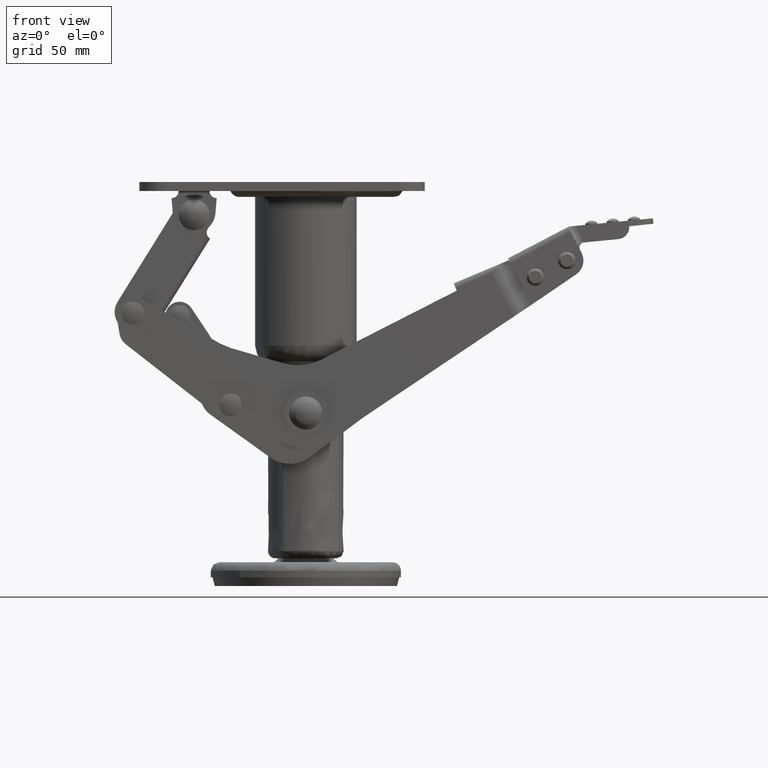
[diagram: clean part render]
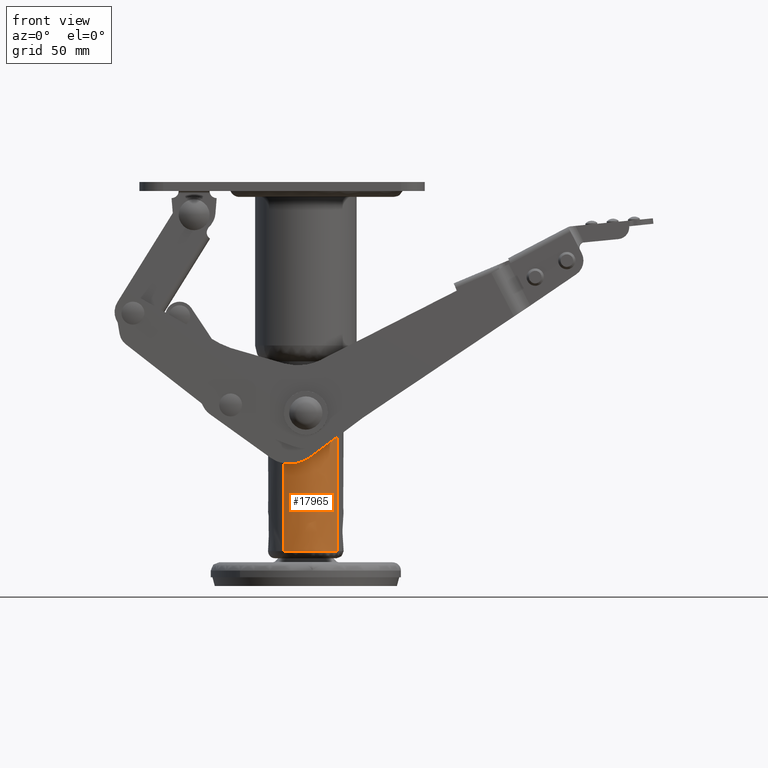
[diagram: same view with one face highlighted and labeled with its STEP entity id]
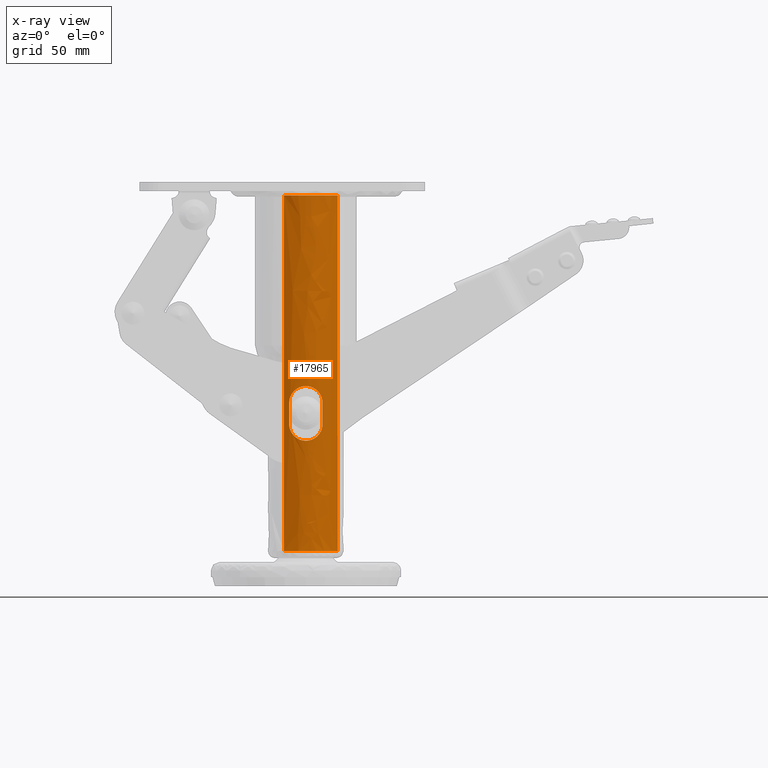
[diagram: x-ray of the same camera — body ghosted, the highlighted face saturated]
A machine part, front view. The second image highlights one B-rep face of the part: STEP entity #17965.
The next image is the same camera in x-ray: the body ghosted, the highlighted face saturated — about 0% of this face is hidden behind the body in this view.
In plain terms, the highlighted face is a freeform B-spline surface patch.
Its self-contained STEP definition (entity closure, byte-faithful):
#17441=CARTESIAN_POINT('',(-9.268997070458426,-12.918804221284271,-110.499995001324510));
#17442=VERTEX_POINT('',#17441);
#17455=CARTESIAN_POINT('',(-9.268997513021827,-12.918805170369041,39.149999999999991));
#17456=VERTEX_POINT('',#17455);
#17457=CARTESIAN_POINT('',(-9.268997513021827,-12.918805170369041,39.149999999999991));
#17458=CARTESIAN_POINT('',(-9.268997070458426,-12.918804221284271,-110.499995001324510));
#17459=QUASI_UNIFORM_CURVE('',1,(#17457,#17458),.UNSPECIFIED.,.F.,.U.);
#17460=EDGE_CURVE('',#17456,#17442,#17459,.T.);
#17507=CARTESIAN_POINT('',(13.427773001684780,-8.514968594584312,39.150000000000013));
#17508=VERTEX_POINT('',#17507);
#17518=CARTESIAN_POINT('',(13.427773817079849,-8.514969143654231,-110.499994999356900));
#17519=VERTEX_POINT('',#17518);
#17520=CARTESIAN_POINT('',(13.427773001684780,-8.514968594584312,39.150000000000013));
#17521=CARTESIAN_POINT('',(13.427773817079849,-8.514969143654231,-110.499994999356900));
#17522=QUASI_UNIFORM_CURVE('',1,(#17520,#17521),.UNSPECIFIED.,.F.,.U.);
#17523=EDGE_CURVE('',#17508,#17519,#17522,.T.);
#17737=CARTESIAN_POINT('',(13.427773746613029,-8.514969254777608,42.891249875084767));
#17738=CARTESIAN_POINT('',(4.912804491835454,-21.942743001390639,42.891249875084767));
#17739=CARTESIAN_POINT('',(-8.514969254777574,-13.427773746613060,42.891249875084782));
#17740=CARTESIAN_POINT('',(-8.899266370443854,-13.184078984819545,42.891249875084775));
#17741=CARTESIAN_POINT('',(-9.268996998442106,-12.918804272954578,42.891249875084782));
#17742=CARTESIAN_POINT('',(13.427773746613029,-8.514969254777608,-114.334776125352800));
#17743=CARTESIAN_POINT('',(4.912804491835454,-21.942743001390639,-114.334776125352780));
#17744=CARTESIAN_POINT('',(-8.514969254777574,-13.427773746613060,-114.334776125352800));
#17745=CARTESIAN_POINT('',(-8.899266370443854,-13.184078984819545,-114.334776125352800));
#17746=CARTESIAN_POINT('',(-9.268996998442106,-12.918804272954578,-114.334776125352760));
#17754=(BOUNDED_SURFACE()B_SPLINE_SURFACE(2,1,((#17737,#17742),(#17738,#17743),(#17739,#17744),(#17740,#17745),(#17741,#17746)),.UNSPECIFIED.,.F.,.F.,.U.)B_SPLINE_SURFACE_WITH_KNOTS((3,2,3),(2,2),(0.0,26.343972625803431,27.397731530835561),(0.0,157.226026000437600),.UNSPECIFIED.)GEOMETRIC_REPRESENTATION_ITEM()RATIONAL_B_SPLINE_SURFACE(((1.0,1.0),(0.707106781186548,0.707106781186548),(1.0,1.0),(0.988284271247462,0.988284271247462),(0.977505800795127,0.977505800795127)))REPRESENTATION_ITEM('')SURFACE());
#17755=CARTESIAN_POINT('',(0.099749535582107,-15.899681104669719,-110.499995000000000));
#17756=VERTEX_POINT('',#17755);
#17757=CARTESIAN_POINT('',(0.099749535582107,-15.899681104669719,-110.499995000000000));
#17758=CARTESIAN_POINT('',(-1.357940265561507,-15.909392993120640,-110.499995000155810));
#17759=CARTESIAN_POINT('',(-3.806476697898698,-15.585207723842951,-110.499995000452700));
#17760=CARTESIAN_POINT('',(-6.935800494474968,-14.399833208924260,-110.499995000916700));
#17761=CARTESIAN_POINT('',(-8.549957276670929,-13.434758655958030,-110.499995001191190));
#17762=CARTESIAN_POINT('',(-9.268997070458426,-12.918804221284271,-110.499995001324510));
#17763=B_SPLINE_CURVE_WITH_KNOTS('',3,(#17757,#17758,#17759,#17760,#17761,#17762),.UNSPECIFIED.,.F.,.U.,(4,1,1,4),(0.000000036826941,4.372992049470207,7.340328950450553,9.995344230422381),.UNSPECIFIED.);
#17764=EDGE_CURVE('',#17756,#17442,#17763,.T.);
#17765=ORIENTED_EDGE('',*,*,#17764,.F.);
#17766=CARTESIAN_POINT('',(13.427773817079849,-8.514969143654231,-110.499994999356900));
#17767=CARTESIAN_POINT('',(12.718914786878250,-9.633487307047860,-110.499994999313800));
#17768=CARTESIAN_POINT('',(11.125560369118070,-11.562834956750310,-110.499994999279000));
#17769=CARTESIAN_POINT('',(8.467404568854837,-13.569076887512050,-110.499994999350310));
#17770=CARTESIAN_POINT('',(6.160333410347943,-14.709284109820031,-110.499994999476600));
#17771=CARTESIAN_POINT('',(3.491034966075528,-15.612965324828791,-110.499994999666600));
#17772=CARTESIAN_POINT('',(1.506738304056766,-15.891352386055530,-110.499994999849510));
#17773=CARTESIAN_POINT('',(0.099749535582107,-15.899681104669719,-110.499995000000000));
#17774=B_SPLINE_CURVE_WITH_KNOTS('',3,(#17766,#17767,#17768,#17769,#17770,#17771,#17772,#17773),.UNSPECIFIED.,.F.,.U.,(4,1,1,1,1,4),(0.000000024565802,3.972591316338125,7.448615634886419,9.931473462891020,11.669485569973951,15.890363404715840),.UNSPECIFIED.);
#17775=EDGE_CURVE('',#17519,#17756,#17774,.T.);
#17776=ORIENTED_EDGE('',*,*,#17775,.F.);
#17777=ORIENTED_EDGE('',*,*,#17523,.F.);
#17778=CARTESIAN_POINT('',(-0.000004345493934,-15.899993999999490,39.149999999999999));
#17779=VERTEX_POINT('',#17778);
#17780=CARTESIAN_POINT('',(13.427773001684780,-8.514968594584312,39.150000000000013));
#17781=CARTESIAN_POINT('',(12.714450357764060,-9.640478465769560,39.150000000000063));
#17782=CARTESIAN_POINT('',(11.162948396279420,-11.516272170228589,39.149999999999807));
#17783=CARTESIAN_POINT('',(8.700968338774766,-13.395899547085010,39.150000000000233));
#17784=CARTESIAN_POINT('',(6.120071530122225,-14.763085490440510,39.149999999999963));
#17785=CARTESIAN_POINT('',(3.331220799659417,-15.669518345266161,39.149999999999913));
#17786=CARTESIAN_POINT('',(1.082653065176590,-15.900122103432849,39.150000000000198));
#17787=CARTESIAN_POINT('',(-0.000004345493934,-15.899993999999490,39.149999999999999));
#17788=B_SPLINE_CURVE_WITH_KNOTS('',3,(#17780,#17781,#17782,#17783,#17784,#17785,#17786,#17787),.UNSPECIFIED.,.F.,.U.,(4,1,1,1,1,4),(0.000000025439798,3.997530173848539,7.245529151343385,9.244283397267022,12.742128010656440,15.990120532205610),.UNSPECIFIED.);
#17789=EDGE_CURVE('',#17508,#17779,#17788,.T.);
#17790=ORIENTED_EDGE('',*,*,#17789,.T.);
#17791=CARTESIAN_POINT('',(-0.000004345493934,-15.899993999999490,39.149999999999999));
#17792=CARTESIAN_POINT('',(-1.133897315426251,-15.900196038428810,39.149999999999942));
#17793=CARTESIAN_POINT('',(-2.834567099248155,-15.717210374011120,39.150000000000013));
#17794=CARTESIAN_POINT('',(-6.020497187771015,-14.844503299324050,39.149999999999991));
#17795=CARTESIAN_POINT('',(-7.971222499793124,-13.850970889696800,39.149999999999913));
#17796=CARTESIAN_POINT('',(-9.268997513021827,-12.918805170369041,39.149999999999991));
#17797=B_SPLINE_CURVE_WITH_KNOTS('',3,(#17791,#17792,#17793,#17794,#17795,#17796),.UNSPECIFIED.,.F.,.U.,(4,1,1,4),(0.000000035037219,3.401618917383112,5.102379941771917,9.895588630569334),.UNSPECIFIED.);
#17798=EDGE_CURVE('',#17779,#17456,#17797,.T.);
#17799=ORIENTED_EDGE('',*,*,#17798,.T.);
#17800=ORIENTED_EDGE('',*,*,#17460,.T.);
#17801=EDGE_LOOP('',(#17765,#17776,#17777,#17790,#17799,#17800));
#17802=FACE_OUTER_BOUND('',#17801,.T.);
#17803=CARTESIAN_POINT('',(-7.0,-14.276197294799401,-48.099991063486712));
#17804=VERTEX_POINT('',#17803);
#17805=CARTESIAN_POINT('',(-7.0,-14.276197294799401,-57.100006936513303));
#17806=VERTEX_POINT('',#17805);
#17807=CARTESIAN_POINT('',(-7.0,-14.276197294799401,-48.099991063486712));
#17808=CARTESIAN_POINT('',(-7.0,-14.276197294799401,-57.100006936513303));
#17809=QUASI_UNIFORM_CURVE('',1,(#17807,#17808),.UNSPECIFIED.,.F.,.U.);
#17810=EDGE_CURVE('',#17804,#17806,#17809,.T.);
#17811=ORIENTED_EDGE('',*,*,#17810,.F.);
#17812=CARTESIAN_POINT('',(7.0,-14.276197294799440,-48.099991063486712));
#17813=VERTEX_POINT('',#17812);
#17814=CARTESIAN_POINT('',(-7.0,-14.276197294799401,-48.099991063486712));
#17815=CARTESIAN_POINT('',(-7.000000000000002,-14.276197294799401,-47.631111076883030));
#17816=CARTESIAN_POINT('',(-6.953380311785102,-14.299315215327001,-47.171457105410447));
#17817=CARTESIAN_POINT('',(-6.817368712197084,-14.364394142771420,-46.494873588078249));
#17818=CARTESIAN_POINT('',(-6.760929760650941,-14.391150568419841,-46.271509156732627));
#17819=CARTESIAN_POINT('',(-6.659322081470181,-14.438304360038931,-45.939711279942607));
#17820=CARTESIAN_POINT('',(-6.622558847781341,-14.455219641814759,-45.829529236612203));
#17821=CARTESIAN_POINT('',(-6.544226512781404,-14.490850904444610,-45.612747217574103));
#17822=CARTESIAN_POINT('',(-6.502570571077540,-14.509607623337720,-45.505834816412062));
#17823=CARTESIAN_POINT('',(-6.282112246563633,-14.607605086461451,-44.978421525761007));
#17824=CARTESIAN_POINT('',(-6.067179974633512,-14.699430802905990,-44.579146534365492));
#17825=CARTESIAN_POINT('',(-5.750412404748015,-14.823872620666030,-44.106784849740961));
#17826=CARTESIAN_POINT('',(-5.684479367770735,-14.849302831354439,-44.013465199314062));
#17827=CARTESIAN_POINT('',(-5.548378385708206,-14.900691176884649,-43.830506714040148));
#17828=CARTESIAN_POINT('',(-5.478381539175176,-14.926586779638241,-43.741074450524700));
#17829=CARTESIAN_POINT('',(-5.262635117638681,-15.004595053978180,-43.478741781233907));
#17830=CARTESIAN_POINT('',(-5.111145280679073,-15.057026394187179,-43.311788684491553));
#17831=CARTESIAN_POINT('',(-4.792895245551375,-15.161332562826670,-42.993246183664112));
#17832=CARTESIAN_POINT('',(-4.626135249301007,-15.213210344179229,-42.841657536003389));
#17833=CARTESIAN_POINT('',(-4.364198745401171,-15.289599415646400,-42.625818156242289));
#17834=CARTESIAN_POINT('',(-4.274916549831088,-15.314824667998019,-42.555799694626373));
#17835=CARTESIAN_POINT('',(-4.092304264752069,-15.364628597015690,-42.419672828805027));
#17836=CARTESIAN_POINT('',(-3.998720140148055,-15.389269127893719,-42.353403057070132));
#17837=CARTESIAN_POINT('',(-3.524862347037097,-15.509290126674159,-42.035015463379011));
#17838=CARTESIAN_POINT('',(-3.125451136968707,-15.595614920590091,-41.819932596309172));
#17839=CARTESIAN_POINT('',(-2.495136122088637,-15.704444116953191,-41.555818807010311));
#17840=CARTESIAN_POINT('',(-2.279795727558605,-15.737279179888461,-41.477609696787908));
#17841=CARTESIAN_POINT('',(-2.003708720063141,-15.773333874747291,-41.392645158772957));
#17842=CARTESIAN_POINT('',(-1.948144883292921,-15.780295064007859,-41.376293816330943));
#17843=CARTESIAN_POINT('',(-1.836311536608258,-15.793699399886361,-41.344894239737272));
#17844=CARTESIAN_POINT('',(-1.779984618393590,-15.800147940340411,-41.329833545286540));
#17845=CARTESIAN_POINT('',(-1.610989971041103,-15.818576561326070,-41.286898992697928));
#17846=CARTESIAN_POINT('',(-1.497999824211832,-15.829679204524011,-41.261178354047637));
#17847=CARTESIAN_POINT('',(-0.931434133501780,-15.879208025529060,-41.146845413859261));
#17848=CARTESIAN_POINT('',(-0.473055274037768,-15.899715055116790,-41.100624667090521));
#17849=CARTESIAN_POINT('',(0.106425703215020,-15.900060210660181,-41.099840670645037));
#17850=CARTESIAN_POINT('',(0.222649881983343,-15.898862487010550,-41.102559751038207));
#17851=CARTESIAN_POINT('',(0.455767573444874,-15.893888047605429,-41.113869545693142));
#17852=CARTESIAN_POINT('',(0.572885109692231,-15.890094279642691,-41.122499155010459));
#17853=CARTESIAN_POINT('',(0.920924568045952,-15.875000617298079,-41.156918208690797));
#17854=CARTESIAN_POINT('',(1.149847974311826,-15.859984074346769,-41.191231999844383));
#17855=CARTESIAN_POINT('',(1.601736887905055,-15.820735891370120,-41.281813806667017));
#17856=CARTESIAN_POINT('',(1.824701811887978,-15.796502725234550,-41.338083705585063));
#17857=CARTESIAN_POINT('',(2.154741913890238,-15.753704419825070,-41.438886107151561));
#17858=CARTESIAN_POINT('',(2.264019504988335,-15.738363129680970,-41.475224989881802));
#17859=CARTESIAN_POINT('',(2.481098625885381,-15.705604347789309,-41.553430175693478));
#17860=CARTESIAN_POINT('',(2.589190786769793,-15.688135256312639,-41.595421952442010));
#17861=CARTESIAN_POINT('',(3.121910072223360,-15.596489589353871,-41.817720016217869));
#17862=CARTESIAN_POINT('',(3.522322734318724,-15.509804544307331,-42.033774875217389));
#17863=CARTESIAN_POINT('',(4.087378793683221,-15.366876394010800,-42.412744922441952));
#17864=CARTESIAN_POINT('',(4.269755070539076,-15.317073758790400,-42.548294219420832));
#17865=CARTESIAN_POINT('',(4.622509054820561,-15.214334258610251,-42.838379499630342));
#17866=CARTESIAN_POINT('',(4.790515182607368,-15.162089985816010,-42.990988854459673));
#17867=CARTESIAN_POINT('',(5.269257808442943,-15.005250026545440,-43.469798919017677));
#17868=CARTESIAN_POINT('',(5.555629397220700,-14.900304144985890,-43.817264644683988));
#17869=CARTESIAN_POINT('',(5.872739431812513,-14.775837803381650,-44.288973576038913));
#17870=CARTESIAN_POINT('',(5.934171761970657,-14.751254007925411,-44.385328405628883));
#17871=CARTESIAN_POINT('',(6.052499974160230,-14.703099447725160,-44.581417883198441));
#17872=CARTESIAN_POINT('',(6.109064026390424,-14.679665494119160,-44.680588708078098));
#17873=CARTESIAN_POINT('',(6.271099874191725,-14.611531335177659,-44.981464271112038));
#17874=CARTESIAN_POINT('',(6.368935865794838,-14.568997580661909,-45.186523876131808));
#17875=CARTESIAN_POINT('',(6.632254486914266,-14.451986406458170,-45.815315839650353));
#17876=CARTESIAN_POINT('',(6.767908317999532,-14.388042918989280,-46.252510889923187));
#17877=CARTESIAN_POINT('',(6.906916608090603,-14.321555445509141,-46.938550377518808));
#17878=CARTESIAN_POINT('',(6.941721614121152,-14.304648887594279,-47.169013870253742));
#17879=CARTESIAN_POINT('',(6.988244048023629,-14.281978990692121,-47.632377304558418));
#17880=CARTESIAN_POINT('',(7.0,-14.276197294799420,-47.865463876086679));
#17881=CARTESIAN_POINT('',(7.0,-14.276197294799420,-48.099991063486712));
#17882=B_SPLINE_CURVE_WITH_KNOTS('',3,(#17814,#17815,#17816,#17817,#17818,#17819,#17820,#17821,#17822,#17823,#17824,#17825,#17826,#17827,#17828,#17829,#17830,#17831,#17832,#17833,#17834,#17835,#17836,#17837,#17838,#17839,#17840,#17841,#17842,#17843,#17844,#17845,#17846,#17847,#17848,#17849,#17850,#17851,#17852,#17853,#17854,#17855,#17856,#17857,#17858,#17859,#17860,#17861,#17862,#17863,#17864,#17865,#17866,#17867,#17868,#17869,#17870,#17871,#17872,#17873,#17874,#17875,#17876,#17877,#17878,#17879,#17880,#17881),.UNSPECIFIED.,.F.,.U.,(4,2,2,2,2,2,2,2,2,2,2,2,2,2,2,2,2,2,2,2,2,2,2,2,2,2,2,2,2,2,2,2,2,4),(0.0,0.062500000000004,0.093750000000005,0.109375000000006,0.125000000000007,0.187500000000009,0.203125000000009,0.218750000000009,0.250000000000010,0.281250000000011,0.296875000000011,0.312500000000011,0.375000000000011,0.406250000000011,0.414062500000011,0.421875000000011,0.437500000000011,0.500000000000010,0.515625000000010,0.531250000000009,0.562500000000009,0.593750000000008,0.609375000000008,0.625000000000008,0.687500000000007,0.718750000000006,0.750000000000005,0.812500000000004,0.828125000000003,0.843750000000003,0.875000000000002,0.937500000000001,0.968750000000001,1.0),.UNSPECIFIED.);
#17883=EDGE_CURVE('',#17804,#17813,#17882,.T.);
#17884=ORIENTED_EDGE('',*,*,#17883,.T.);
#17885=CARTESIAN_POINT('',(7.0,-14.276197294799401,-57.100006936513303));
#17886=VERTEX_POINT('',#17885);
#17887=CARTESIAN_POINT('',(7.0,-14.276197294799401,-57.100006936513303));
#17888=CARTESIAN_POINT('',(7.0,-14.276197294799440,-48.099991063486712));
#17889=QUASI_UNIFORM_CURVE('',1,(#17887,#17888),.UNSPECIFIED.,.F.,.U.);
#17890=EDGE_CURVE('',#17886,#17813,#17889,.T.);
#17891=ORIENTED_EDGE('',*,*,#17890,.F.);
#17892=CARTESIAN_POINT('',(7.0,-14.276197294799401,-57.100006936513303));
#17893=CARTESIAN_POINT('',(7.000000000000003,-14.276197294799401,-57.568886923116992));
#17894=CARTESIAN_POINT('',(6.953380311785103,-14.299315215327001,-58.028540894589547));
#17895=CARTESIAN_POINT('',(6.817368712197083,-14.364394142771420,-58.705124411921751));
#17896=CARTESIAN_POINT('',(6.760929760650942,-14.391150568419841,-58.928488843267367));
#17897=CARTESIAN_POINT('',(6.659322081470181,-14.438304360038931,-59.260286720057380));
#17898=CARTESIAN_POINT('',(6.622558847781338,-14.455219641814759,-59.370468763387777));
#17899=CARTESIAN_POINT('',(6.544226512781398,-14.490850904444610,-59.587250782425912));
#17900=CARTESIAN_POINT('',(6.502570571077539,-14.509607623337720,-59.694163183587953));
#17901=CARTESIAN_POINT('',(6.282112246563635,-14.607605086461451,-60.221576474238987));
#17902=CARTESIAN_POINT('',(6.067179974633511,-14.699430802905990,-60.620851465634537));
#17903=CARTESIAN_POINT('',(5.750412404748017,-14.823872620666039,-61.093213150259018));
#17904=CARTESIAN_POINT('',(5.684479367770720,-14.849302831354450,-61.186532800685981));
#17905=CARTESIAN_POINT('',(5.548378385708190,-14.900691176884660,-61.369491285959867));
#17906=CARTESIAN_POINT('',(5.478381539175166,-14.926586779638249,-61.458923549475323));
#17907=CARTESIAN_POINT('',(5.262635117638673,-15.004595053978180,-61.721256218766108));
#17908=CARTESIAN_POINT('',(5.111145280679067,-15.057026394187190,-61.888209315508497));
#17909=CARTESIAN_POINT('',(4.792895245551372,-15.161332562826670,-62.206751816335881));
#17910=CARTESIAN_POINT('',(4.626135249301001,-15.213210344179240,-62.358340463996633));
#17911=CARTESIAN_POINT('',(4.364198745401166,-15.289599415646400,-62.574179843757712));
#17912=CARTESIAN_POINT('',(4.274916549831084,-15.314824667998019,-62.644198305373607));
#17913=CARTESIAN_POINT('',(4.092304264752067,-15.364628597015690,-62.780325171194960));
#17914=CARTESIAN_POINT('',(3.998720140148036,-15.389269127893719,-62.846594942929890));
#17915=CARTESIAN_POINT('',(3.524862347037083,-15.509290126674159,-63.164982536620997));
#17916=CARTESIAN_POINT('',(3.125451136968702,-15.595614920590100,-63.380065403690800));
#17917=CARTESIAN_POINT('',(2.495136122088637,-15.704444116953180,-63.644179192989682));
#17918=CARTESIAN_POINT('',(2.279795727558611,-15.737279179888461,-63.722388303212092));
#17919=CARTESIAN_POINT('',(2.003708720063151,-15.773333874747291,-63.807352841227029));
#17920=CARTESIAN_POINT('',(1.948144883292929,-15.780295064007870,-63.823704183669072));
#17921=CARTESIAN_POINT('',(1.836311536608266,-15.793699399886361,-63.855103760262743));
#17922=CARTESIAN_POINT('',(1.779984618393568,-15.800147940340430,-63.870164454713468));
#17923=CARTESIAN_POINT('',(1.610989971041083,-15.818576561326079,-63.913099007302087));
#17924=CARTESIAN_POINT('',(1.497999824211812,-15.829679204524011,-63.938819645952371));
#17925=CARTESIAN_POINT('',(0.931434133501770,-15.879208025529049,-64.053152586140783));
#17926=CARTESIAN_POINT('',(0.473055274037764,-15.899715055116779,-64.099373332909494));
#17927=CARTESIAN_POINT('',(-0.106425703215019,-15.900060210660181,-64.100157329354971));
#17928=CARTESIAN_POINT('',(-0.222649881983342,-15.898862487010550,-64.097438248961794));
#17929=CARTESIAN_POINT('',(-0.455767573444871,-15.893888047605429,-64.086128454306845));
#17930=CARTESIAN_POINT('',(-0.572885109692245,-15.890094279642691,-64.077498844989577));
#17931=CARTESIAN_POINT('',(-0.920924568045963,-15.875000617298079,-64.043079791309239));
#17932=CARTESIAN_POINT('',(-1.149847974311836,-15.859984074346769,-64.008766000155617));
#17933=CARTESIAN_POINT('',(-1.601736887905060,-15.820735891370120,-63.918184193332984));
#17934=CARTESIAN_POINT('',(-1.824701811887985,-15.796502725234550,-63.861914294414959));
#17935=CARTESIAN_POINT('',(-2.154741913890240,-15.753704419825070,-63.761111892848433));
#17936=CARTESIAN_POINT('',(-2.264019504988338,-15.738363129680961,-63.724773010118227));
#17937=CARTESIAN_POINT('',(-2.481098625885382,-15.705604347789309,-63.646567824306558));
#17938=CARTESIAN_POINT('',(-2.589190786769805,-15.688135256312639,-63.604576047557998));
#17939=CARTESIAN_POINT('',(-3.121910072223364,-15.596489589353860,-63.382277983782110));
#17940=CARTESIAN_POINT('',(-3.522322734318730,-15.509804544307331,-63.166223124782633));
#17941=CARTESIAN_POINT('',(-4.087378793683222,-15.366876394010800,-62.787253077558063));
#17942=CARTESIAN_POINT('',(-4.269755070539079,-15.317073758790400,-62.651703780579190));
#17943=CARTESIAN_POINT('',(-4.622509054820559,-15.214334258610251,-62.361618500369680));
#17944=CARTESIAN_POINT('',(-4.790515182607373,-15.162089985815999,-62.209009145540342));
#17945=CARTESIAN_POINT('',(-5.269257808442949,-15.005250026545440,-61.730199080982310));
#17946=CARTESIAN_POINT('',(-5.555629397220699,-14.900304144985890,-61.382733355316027));
#17947=CARTESIAN_POINT('',(-5.872739431812513,-14.775837803381650,-60.911024423961081));
#17948=CARTESIAN_POINT('',(-5.934171761970662,-14.751254007925420,-60.814669594371132));
#17949=CARTESIAN_POINT('',(-6.052499974160234,-14.703099447725160,-60.618580116801553));
#17950=CARTESIAN_POINT('',(-6.109064026390429,-14.679665494119160,-60.519409291921903));
#17951=CARTESIAN_POINT('',(-6.271099874191727,-14.611531335177659,-60.218533728887948));
#17952=CARTESIAN_POINT('',(-6.368935865794843,-14.568997580661909,-60.013474123868178));
#17953=CARTESIAN_POINT('',(-6.632254486914268,-14.451986406458170,-59.384682160349641));
#17954=CARTESIAN_POINT('',(-6.767908317999533,-14.388042918989280,-58.947487110076821));
#17955=CARTESIAN_POINT('',(-6.906916608090600,-14.321555445509130,-58.261447622481199));
#17956=CARTESIAN_POINT('',(-6.941721614121151,-14.304648887594279,-58.030984129746258));
#17957=CARTESIAN_POINT('',(-6.988244048023627,-14.281978990692121,-57.567620695441569));
#17958=CARTESIAN_POINT('',(-6.999999999999999,-14.276197294799440,-57.334534123913301));
#17959=CARTESIAN_POINT('',(-7.0,-14.276197294799440,-57.100006936513303));
#17960=B_SPLINE_CURVE_WITH_KNOTS('',3,(#17892,#17893,#17894,#17895,#17896,#17897,#17898,#17899,#17900,#17901,#17902,#17903,#17904,#17905,#17906,#17907,#17908,#17909,#17910,#17911,#17912,#17913,#17914,#17915,#17916,#17917,#17918,#17919,#17920,#17921,#17922,#17923,#17924,#17925,#17926,#17927,#17928,#17929,#17930,#17931,#17932,#17933,#17934,#17935,#17936,#17937,#17938,#17939,#17940,#17941,#17942,#17943,#17944,#17945,#17946,#17947,#17948,#17949,#17950,#17951,#17952,#17953,#17954,#17955,#17956,#17957,#17958,#17959),.UNSPECIFIED.,.F.,.U.,(4,2,2,2,2,2,2,2,2,2,2,2,2,2,2,2,2,2,2,2,2,2,2,2,2,2,2,2,2,2,2,2,2,4),(0.0,0.062500000000008,0.093750000000012,0.109375000000014,0.125000000000015,0.187500000000018,0.203125000000019,0.218750000000020,0.250000000000021,0.281250000000022,0.296875000000022,0.312500000000022,0.375000000000021,0.406250000000021,0.414062500000021,0.421875000000020,0.437500000000020,0.500000000000019,0.515625000000019,0.531250000000019,0.562500000000019,0.593750000000018,0.609375000000018,0.625000000000018,0.687500000000016,0.718750000000014,0.750000000000014,0.812500000000012,0.828125000000011,0.843750000000010,0.875000000000008,0.937500000000004,0.968750000000002,1.0),.UNSPECIFIED.);
#17961=EDGE_CURVE('',#17886,#17806,#17960,.T.);
#17962=ORIENTED_EDGE('',*,*,#17961,.T.);
#17963=EDGE_LOOP('',(#17811,#17884,#17891,#17962));
#17964=FACE_BOUND('',#17963,.T.);
#17965=ADVANCED_FACE('',(#17802,#17964),#17754,.T.);